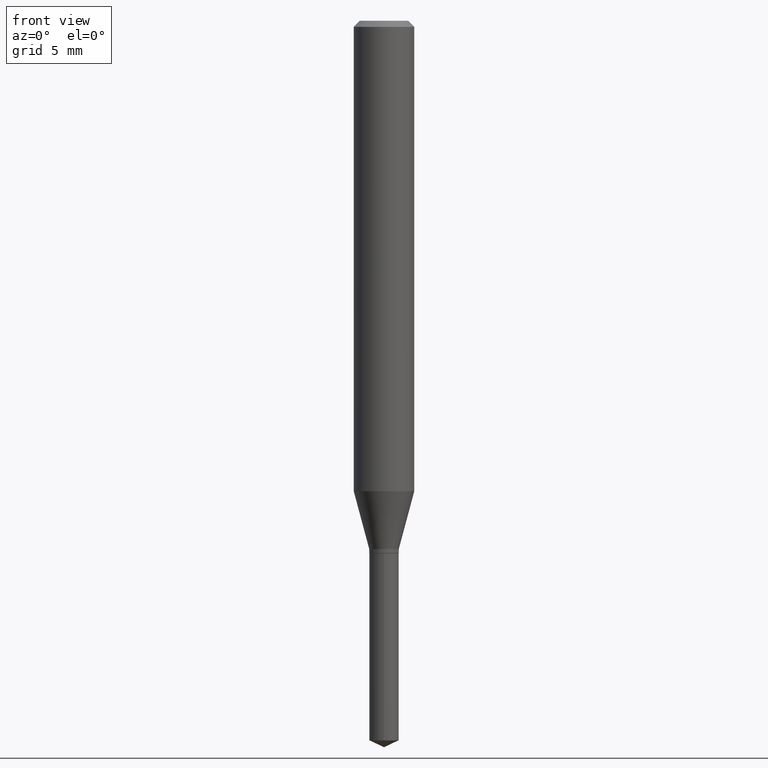
[diagram: clean part render]
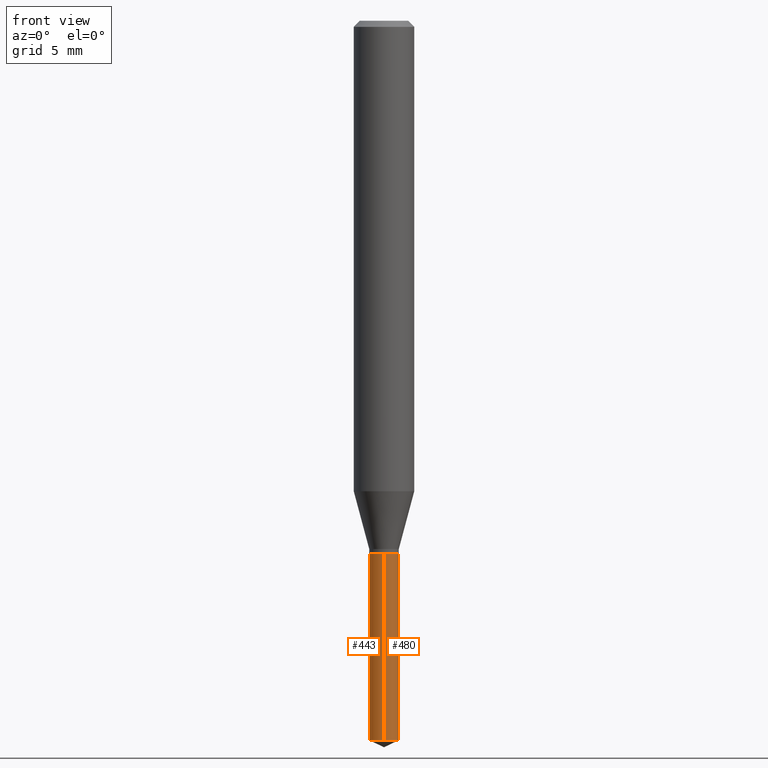
[diagram: same view with one multi-face feature highlighted, each face labeled with its STEP entity id]
A machine part, front view. The highlighted faces form ONE feature: a constant-radius fillet chain: 2 tangent blend faces with common blend radius 0.7747 mm. The faces share edges in the B-rep.
Their STEP definitions:
[1] entity #443 (Cylinder):
#1 = VECTOR ( 'NONE', #289, 39.37007874015748143 ) ;
#3 = AXIS2_PLACEMENT_3D ( 'NONE', #153, #161, #115 ) ;
#4 = ORIENTED_EDGE ( 'NONE', *, *, #213, .T. ) ;
#5 = FACE_OUTER_BOUND ( 'NONE', #14, .T. ) ;
#8 = CYLINDRICAL_SURFACE ( 'NONE', #230, 0.03049999999999999586 ) ;
#14 = EDGE_LOOP ( 'NONE', ( #392, #4, #244, #196 ) ) ;
#20 = CIRCLE ( 'NONE', #3, 0.03049999999999999586 ) ;
#30 = DIRECTION ( 'NONE',  ( -2.445399690415121810E-29, 3.491580316559632610E-15, 1.000000000000000000 ) ) ;
#43 = VECTOR ( 'NONE', #30, 39.37007874015748143 ) ;
#51 = VERTEX_POINT ( 'NONE', #246 ) ;
#115 = DIRECTION ( 'NONE',  ( -6.982962677686265922E-15, -1.000000000000000000, 4.478439333875842027E-15 ) ) ;
#137 = CIRCLE ( 'NONE', #301, 0.03049999999999999586 ) ;
#146 = DIRECTION ( 'NONE',  ( -2.445399690415121530E-29, 3.491580316559632610E-15, 1.000000000000000000 ) ) ;
#153 = CARTESIAN_POINT ( 'NONE',  ( 2.690015686803650369E-29, -3.840629472727460101E-15, -1.100000000000000089 ) ) ;
#156 = DIRECTION ( 'NONE',  ( -2.445399690415121530E-29, 3.491580316559632610E-15, 1.000000000000000000 ) ) ;
#161 = DIRECTION ( 'NONE',  ( -2.445399690415121530E-29, 3.491580316559632610E-15, 1.000000000000000000 ) ) ;
#186 = CARTESIAN_POINT ( 'NONE',  ( 3.633396150581541585E-29, -5.187603004810727397E-15, -1.485777616426273040 ) ) ;
#188 = LINE ( 'NONE', #258, #1 ) ;
#196 = ORIENTED_EDGE ( 'NONE', *, *, #428, .F. ) ;
#198 = VERTEX_POINT ( 'NONE', #220 ) ;
#200 = CARTESIAN_POINT ( 'NONE',  ( 2.167155344068669628E-16, 0.03049999999999615866, -1.100000000000000089 ) ) ;
#213 = EDGE_CURVE ( 'NONE', #51, #385, #137, .T. ) ;
#220 = CARTESIAN_POINT ( 'NONE',  ( -2.129803616694041823E-16, -0.03050000000000384001, -1.099999999999999867 ) ) ;
#224 = EDGE_CURVE ( 'NONE', #385, #198, #188, .T. ) ;
#230 = AXIS2_PLACEMENT_3D ( 'NONE', #231, #156, #455 ) ;
#231 = CARTESIAN_POINT ( 'NONE',  ( 2.690015686803650369E-29, -3.840629472727460101E-15, -1.100000000000000089 ) ) ;
#244 = ORIENTED_EDGE ( 'NONE', *, *, #224, .T. ) ;
#246 = CARTESIAN_POINT ( 'NONE',  ( 2.167155344068668396E-16, 0.03049999999999481251, -1.485777616426273040 ) ) ;
#258 = CARTESIAN_POINT ( 'NONE',  ( -2.129803616694041823E-16, -0.03050000000000384001, -1.099999999999999867 ) ) ;
#280 = EDGE_CURVE ( 'NONE', #51, #383, #323, .T. ) ;
#289 = DIRECTION ( 'NONE',  ( -2.445399690415121810E-29, 3.491580316559632610E-15, 1.000000000000000000 ) ) ;
#300 = CARTESIAN_POINT ( 'NONE',  ( -2.129803616693947899E-16, -0.03050000000000518616, -1.485777616426273040 ) ) ;
#301 = AXIS2_PLACEMENT_3D ( 'NONE', #186, #146, #325 ) ;
#323 = LINE ( 'NONE', #446, #43 ) ;
#325 = DIRECTION ( 'NONE',  ( -6.982962677686265922E-15, -1.000000000000000000, 0.000000000000000000 ) ) ;
#383 = VERTEX_POINT ( 'NONE', #200 ) ;
#385 = VERTEX_POINT ( 'NONE', #300 ) ;
#392 = ORIENTED_EDGE ( 'NONE', *, *, #280, .F. ) ;
#428 = EDGE_CURVE ( 'NONE', #383, #198, #20, .T. ) ;
#443 = ADVANCED_FACE ( 'NONE', ( #5 ), #8, .T. ) ;
#446 = CARTESIAN_POINT ( 'NONE',  ( 2.167155344068573979E-16, 0.03049999999999615519, -1.100000000000000089 ) ) ;
#455 = DIRECTION ( 'NONE',  ( -6.982962677686265922E-15, -1.000000000000000000, 4.478439333875842027E-15 ) ) ;
[2] entity #480 (Cylinder):
#1 = VECTOR ( 'NONE', #289, 39.37007874015748143 ) ;
#7 = EDGE_CURVE ( 'NONE', #198, #383, #295, .T. ) ;
#9 = ORIENTED_EDGE ( 'NONE', *, *, #224, .F. ) ;
#21 = DIRECTION ( 'NONE',  ( -2.445399690415121530E-29, 3.491580316559632610E-15, 1.000000000000000000 ) ) ;
#23 = EDGE_LOOP ( 'NONE', ( #80, #313, #118, #9 ) ) ;
#27 = DIRECTION ( 'NONE',  ( -2.445399690415121530E-29, 3.491580316559632610E-15, 1.000000000000000000 ) ) ;
#30 = DIRECTION ( 'NONE',  ( -2.445399690415121810E-29, 3.491580316559632610E-15, 1.000000000000000000 ) ) ;
#40 = CYLINDRICAL_SURFACE ( 'NONE', #86, 0.03049999999999999586 ) ;
#43 = VECTOR ( 'NONE', #30, 39.37007874015748143 ) ;
#51 = VERTEX_POINT ( 'NONE', #246 ) ;
#74 = EDGE_CURVE ( 'NONE', #385, #51, #108, .T. ) ;
#80 = ORIENTED_EDGE ( 'NONE', *, *, #74, .T. ) ;
#86 = AXIS2_PLACEMENT_3D ( 'NONE', #189, #294, #391 ) ;
#93 = AXIS2_PLACEMENT_3D ( 'NONE', #104, #27, #322 ) ;
#104 = CARTESIAN_POINT ( 'NONE',  ( 2.690015686803650369E-29, -3.840629472727460101E-15, -1.100000000000000089 ) ) ;
#108 = CIRCLE ( 'NONE', #426, 0.03049999999999999586 ) ;
#118 = ORIENTED_EDGE ( 'NONE', *, *, #7, .F. ) ;
#188 = LINE ( 'NONE', #258, #1 ) ;
#189 = CARTESIAN_POINT ( 'NONE',  ( 2.690015686803650369E-29, -3.840629472727460101E-15, -1.100000000000000089 ) ) ;
#198 = VERTEX_POINT ( 'NONE', #220 ) ;
#200 = CARTESIAN_POINT ( 'NONE',  ( 2.167155344068669628E-16, 0.03049999999999615866, -1.100000000000000089 ) ) ;
#220 = CARTESIAN_POINT ( 'NONE',  ( -2.129803616694041823E-16, -0.03050000000000384001, -1.099999999999999867 ) ) ;
#223 = FACE_OUTER_BOUND ( 'NONE', #23, .T. ) ;
#224 = EDGE_CURVE ( 'NONE', #385, #198, #188, .T. ) ;
#242 = CARTESIAN_POINT ( 'NONE',  ( 3.633396150581541585E-29, -5.187603004810727397E-15, -1.485777616426273040 ) ) ;
#246 = CARTESIAN_POINT ( 'NONE',  ( 2.167155344068668396E-16, 0.03049999999999481251, -1.485777616426273040 ) ) ;
#258 = CARTESIAN_POINT ( 'NONE',  ( -2.129803616694041823E-16, -0.03050000000000384001, -1.099999999999999867 ) ) ;
#280 = EDGE_CURVE ( 'NONE', #51, #383, #323, .T. ) ;
#289 = DIRECTION ( 'NONE',  ( -2.445399690415121810E-29, 3.491580316559632610E-15, 1.000000000000000000 ) ) ;
#294 = DIRECTION ( 'NONE',  ( -2.445399690415121530E-29, 3.491580316559632610E-15, 1.000000000000000000 ) ) ;
#295 = CIRCLE ( 'NONE', #93, 0.03049999999999999586 ) ;
#300 = CARTESIAN_POINT ( 'NONE',  ( -2.129803616693947899E-16, -0.03050000000000518616, -1.485777616426273040 ) ) ;
#313 = ORIENTED_EDGE ( 'NONE', *, *, #280, .T. ) ;
#322 = DIRECTION ( 'NONE',  ( -6.982962677686265922E-15, -1.000000000000000000, 4.478439333875842027E-15 ) ) ;
#323 = LINE ( 'NONE', #446, #43 ) ;
#383 = VERTEX_POINT ( 'NONE', #200 ) ;
#385 = VERTEX_POINT ( 'NONE', #300 ) ;
#391 = DIRECTION ( 'NONE',  ( -6.982962677686265922E-15, -1.000000000000000000, 4.478439333875842027E-15 ) ) ;
#403 = DIRECTION ( 'NONE',  ( -6.982962677686265922E-15, -1.000000000000000000, 0.000000000000000000 ) ) ;
#426 = AXIS2_PLACEMENT_3D ( 'NONE', #242, #21, #403 ) ;
#446 = CARTESIAN_POINT ( 'NONE',  ( 2.167155344068573979E-16, 0.03049999999999615519, -1.100000000000000089 ) ) ;
#480 = ADVANCED_FACE ( 'NONE', ( #223 ), #40, .T. ) ;